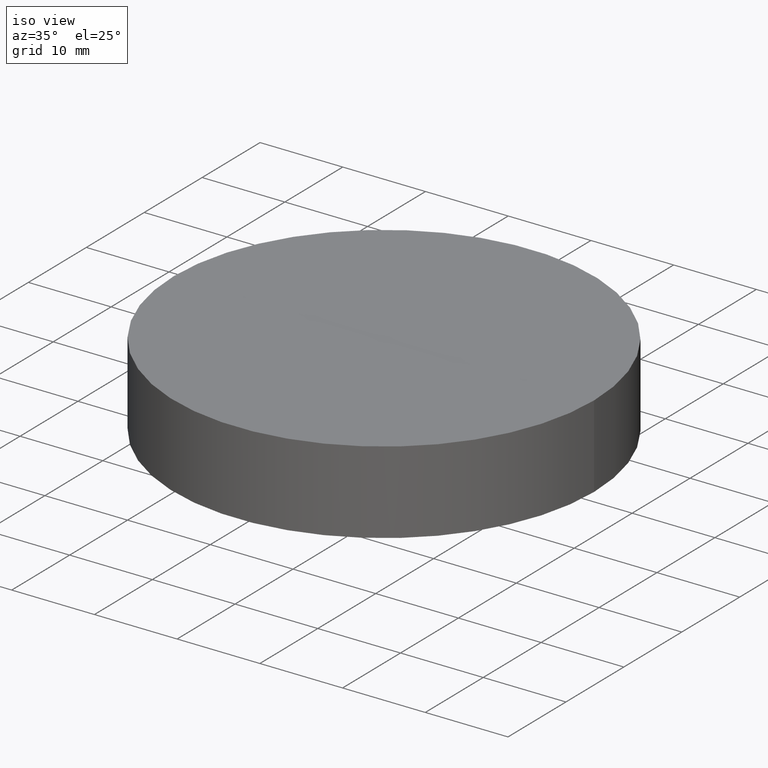
[diagram: clean part render]
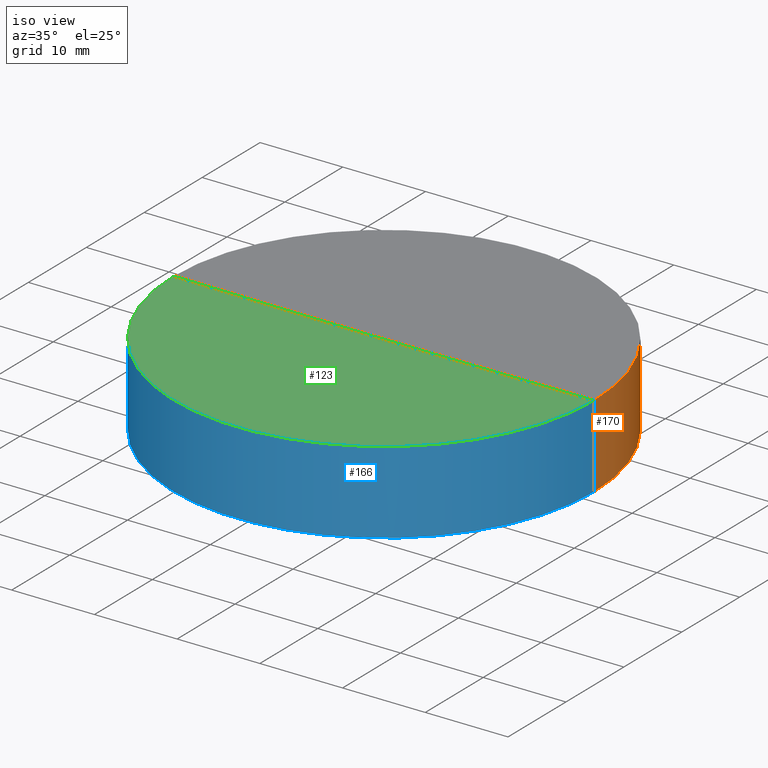
[diagram: same view with three faces highlighted in distinct colors, each labeled with its STEP entity id]
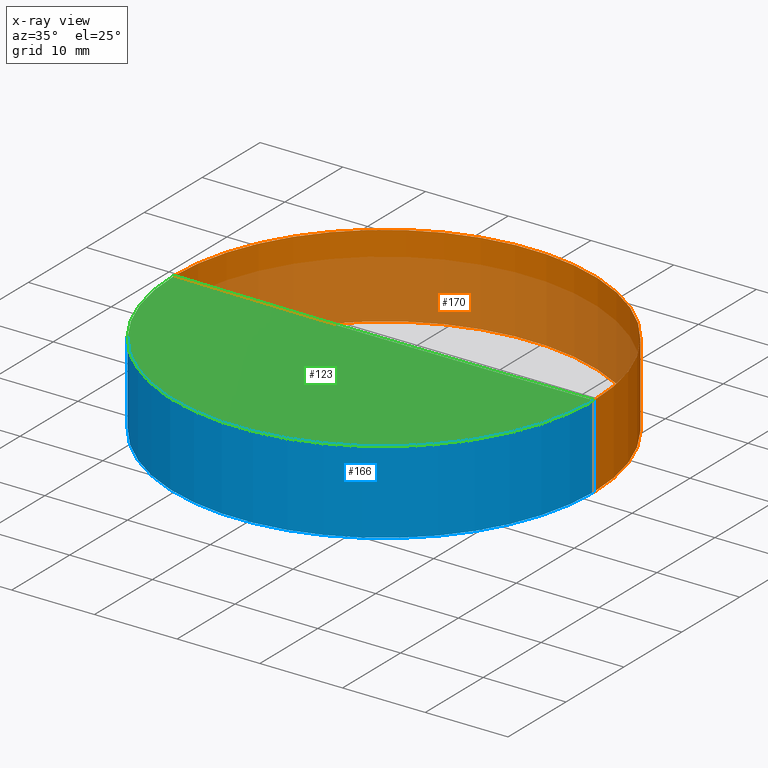
[diagram: x-ray of the same camera — body ghosted, the three highlighted faces saturated]
A machine part, iso view with three faces highlighted in distinct colors.
The next image is the same camera in x-ray (body ghosted, the three faces saturated) — at least one of them is partly hidden behind the body in this view.
Their STEP definitions:

[orange] entity #170 — the highlighted cylindrical surface (partial cylindrical patch) has radius 25.4 mm, axis along (-0, -0, -1).
#2 = DIRECTION ( 'NONE',  ( 0.000000000000000000, 0.000000000000000000, 1.000000000000000000 ) ) ;
#15 = ORIENTED_EDGE ( 'NONE', *, *, #83, .T. ) ;
#16 = CARTESIAN_POINT ( 'NONE',  ( -25.39999999999999858, 0.000000000000000000, 0.000000000000000000 ) ) ;
#18 = CARTESIAN_POINT ( 'NONE',  ( -25.39999999995439239, 0.000000000000000000, 9.999999999999786837 ) ) ;
#20 = DIRECTION ( 'NONE',  ( -1.000000000000000000, 0.000000000000000000, 0.000000000000000000 ) ) ;
#33 = LINE ( 'NONE', #191, #163 ) ;
#34 = FACE_OUTER_BOUND ( 'NONE', #184, .T. ) ;
#38 = VECTOR ( 'NONE', #81, 1000.000000000000000 ) ;
#43 = VERTEX_POINT ( 'NONE', #89 ) ;
#52 = CARTESIAN_POINT ( 'NONE',  ( 0.000000000000000000, 0.000000000000000000, 0.000000000000000000 ) ) ;
#64 = CYLINDRICAL_SURFACE ( 'NONE', #66, 25.39999999999999858 ) ;
#66 = AXIS2_PLACEMENT_3D ( 'NONE', #159, #190, #20 ) ;
#67 = DIRECTION ( 'NONE',  ( 1.000000000000000000, 0.000000000000000000, 0.000000000000000000 ) ) ;
#75 = EDGE_CURVE ( 'NONE', #110, #43, #85, .T. ) ;
#77 = VERTEX_POINT ( 'NONE', #156 ) ;
#80 = LINE ( 'NONE', #100, #38 ) ;
#81 = DIRECTION ( 'NONE',  ( -0.000000000000000000, -0.000000000000000000, -1.000000000000000000 ) ) ;
#83 = EDGE_CURVE ( 'NONE', #43, #77, #80, .T. ) ;
#85 = CIRCLE ( 'NONE', #108, 25.39999999995476543 ) ;
#89 = CARTESIAN_POINT ( 'NONE',  ( 25.39999999995513491, 3.110602869831530446E-15, 9.999999999999786837 ) ) ;
#93 = ORIENTED_EDGE ( 'NONE', *, *, #75, .T. ) ;
#94 = AXIS2_PLACEMENT_3D ( 'NONE', #52, #2, #67 ) ;
#96 = DIRECTION ( 'NONE',  ( -0.000000000000000000, -0.000000000000000000, -1.000000000000000000 ) ) ;
#97 = DIRECTION ( 'NONE',  ( -0.000000000000000000, -0.000000000000000000, -1.000000000000000000 ) ) ;
#100 = CARTESIAN_POINT ( 'NONE',  ( 25.39999999999999858, 3.110602869834276865E-15, 10.00000000000000000 ) ) ;
#108 = AXIS2_PLACEMENT_3D ( 'NONE', #143, #97, #169 ) ;
#110 = VERTEX_POINT ( 'NONE', #18 ) ;
#111 = ORIENTED_EDGE ( 'NONE', *, *, #115, .F. ) ;
#115 = EDGE_CURVE ( 'NONE', #110, #198, #33, .T. ) ;
#143 = CARTESIAN_POINT ( 'NONE',  ( 3.712308238590367182E-13, 0.000000000000000000, 9.999999999999786837 ) ) ;
#147 = EDGE_CURVE ( 'NONE', #77, #198, #176, .T. ) ;
#152 = ORIENTED_EDGE ( 'NONE', *, *, #147, .T. ) ;
#156 = CARTESIAN_POINT ( 'NONE',  ( 25.39999999999999858, 3.110602869834276865E-15, 0.000000000000000000 ) ) ;
#159 = CARTESIAN_POINT ( 'NONE',  ( 0.000000000000000000, 0.000000000000000000, 10.00000000000000000 ) ) ;
#163 = VECTOR ( 'NONE', #96, 1000.000000000000000 ) ;
#169 = DIRECTION ( 'NONE',  ( 1.000000000000000000, 0.000000000000000000, 0.000000000000000000 ) ) ;
#170 = ADVANCED_FACE ( 'NONE', ( #34 ), #64, .T. ) ;
#176 = CIRCLE ( 'NONE', #94, 25.39999999999999858 ) ;
#184 = EDGE_LOOP ( 'NONE', ( #93, #15, #152, #111 ) ) ;
#190 = DIRECTION ( 'NONE',  ( -0.000000000000000000, -0.000000000000000000, -1.000000000000000000 ) ) ;
#191 = CARTESIAN_POINT ( 'NONE',  ( -25.39999999999999858, 0.000000000000000000, 10.00000000000000000 ) ) ;
#198 = VERTEX_POINT ( 'NONE', #16 ) ;

[blue] entity #166 — the highlighted cylindrical surface (partial cylindrical patch) has radius 25.4 mm, axis along (-0, -0, -1).
#12 = EDGE_CURVE ( 'NONE', #43, #110, #101, .T. ) ;
#16 = CARTESIAN_POINT ( 'NONE',  ( -25.39999999999999858, 0.000000000000000000, 0.000000000000000000 ) ) ;
#17 = AXIS2_PLACEMENT_3D ( 'NONE', #167, #113, #31 ) ;
#18 = CARTESIAN_POINT ( 'NONE',  ( -25.39999999995439239, 0.000000000000000000, 9.999999999999786837 ) ) ;
#26 = DIRECTION ( 'NONE',  ( 1.000000000000000000, 0.000000000000000000, 0.000000000000000000 ) ) ;
#30 = ORIENTED_EDGE ( 'NONE', *, *, #83, .F. ) ;
#31 = DIRECTION ( 'NONE',  ( -1.000000000000000000, 0.000000000000000000, 0.000000000000000000 ) ) ;
#32 = CARTESIAN_POINT ( 'NONE',  ( 0.000000000000000000, 0.000000000000000000, 0.000000000000000000 ) ) ;
#33 = LINE ( 'NONE', #191, #163 ) ;
#38 = VECTOR ( 'NONE', #81, 1000.000000000000000 ) ;
#43 = VERTEX_POINT ( 'NONE', #89 ) ;
#50 = AXIS2_PLACEMENT_3D ( 'NONE', #32, #155, #145 ) ;
#77 = VERTEX_POINT ( 'NONE', #156 ) ;
#78 = CYLINDRICAL_SURFACE ( 'NONE', #17, 25.39999999999999858 ) ;
#80 = LINE ( 'NONE', #100, #38 ) ;
#81 = DIRECTION ( 'NONE',  ( -0.000000000000000000, -0.000000000000000000, -1.000000000000000000 ) ) ;
#83 = EDGE_CURVE ( 'NONE', #43, #77, #80, .T. ) ;
#89 = CARTESIAN_POINT ( 'NONE',  ( 25.39999999995513491, 3.110602869831530446E-15, 9.999999999999786837 ) ) ;
#96 = DIRECTION ( 'NONE',  ( -0.000000000000000000, -0.000000000000000000, -1.000000000000000000 ) ) ;
#100 = CARTESIAN_POINT ( 'NONE',  ( 25.39999999999999858, 3.110602869834276865E-15, 10.00000000000000000 ) ) ;
#101 = CIRCLE ( 'NONE', #168, 25.39999999995476543 ) ;
#106 = CARTESIAN_POINT ( 'NONE',  ( 3.712308238590367182E-13, 0.000000000000000000, 9.999999999999786837 ) ) ;
#110 = VERTEX_POINT ( 'NONE', #18 ) ;
#113 = DIRECTION ( 'NONE',  ( -0.000000000000000000, -0.000000000000000000, -1.000000000000000000 ) ) ;
#115 = EDGE_CURVE ( 'NONE', #110, #198, #33, .T. ) ;
#125 = ORIENTED_EDGE ( 'NONE', *, *, #181, .T. ) ;
#145 = DIRECTION ( 'NONE',  ( 1.000000000000000000, 0.000000000000000000, 0.000000000000000000 ) ) ;
#154 = ORIENTED_EDGE ( 'NONE', *, *, #12, .T. ) ;
#155 = DIRECTION ( 'NONE',  ( 0.000000000000000000, 0.000000000000000000, 1.000000000000000000 ) ) ;
#156 = CARTESIAN_POINT ( 'NONE',  ( 25.39999999999999858, 3.110602869834276865E-15, 0.000000000000000000 ) ) ;
#158 = FACE_OUTER_BOUND ( 'NONE', #165, .T. ) ;
#162 = DIRECTION ( 'NONE',  ( -0.000000000000000000, -0.000000000000000000, -1.000000000000000000 ) ) ;
#163 = VECTOR ( 'NONE', #96, 1000.000000000000000 ) ;
#165 = EDGE_LOOP ( 'NONE', ( #30, #154, #197, #125 ) ) ;
#166 = ADVANCED_FACE ( 'NONE', ( #158 ), #78, .T. ) ;
#167 = CARTESIAN_POINT ( 'NONE',  ( 0.000000000000000000, 0.000000000000000000, 10.00000000000000000 ) ) ;
#168 = AXIS2_PLACEMENT_3D ( 'NONE', #106, #162, #26 ) ;
#181 = EDGE_CURVE ( 'NONE', #198, #77, #192, .T. ) ;
#191 = CARTESIAN_POINT ( 'NONE',  ( -25.39999999999999858, 0.000000000000000000, 10.00000000000000000 ) ) ;
#192 = CIRCLE ( 'NONE', #50, 25.39999999999999858 ) ;
#197 = ORIENTED_EDGE ( 'NONE', *, *, #115, .T. ) ;
#198 = VERTEX_POINT ( 'NONE', #16 ) ;

[green] entity #123 — the highlighted spherical surface has radius 3000 mm.
#5 = SPHERICAL_SURFACE ( 'NONE', #22, 2999.999999999999545 ) ;
#7 = FACE_OUTER_BOUND ( 'NONE', #29, .T. ) ;
#9 = CIRCLE ( 'NONE', #151, 2999.999999999999091 ) ;
#12 = EDGE_CURVE ( 'NONE', #43, #110, #101, .T. ) ;
#18 = CARTESIAN_POINT ( 'NONE',  ( -25.39999999995439239, 0.000000000000000000, 9.999999999999786837 ) ) ;
#19 = DIRECTION ( 'NONE',  ( 0.000000000000000000, 1.000000000000000000, -0.000000000000000000 ) ) ;
#22 = AXIS2_PLACEMENT_3D ( 'NONE', #157, #171, #112 ) ;
#26 = DIRECTION ( 'NONE',  ( 1.000000000000000000, 0.000000000000000000, 0.000000000000000000 ) ) ;
#29 = EDGE_LOOP ( 'NONE', ( #179, #61, #58 ) ) ;
#43 = VERTEX_POINT ( 'NONE', #89 ) ;
#48 = DIRECTION ( 'NONE',  ( 0.000000000000000000, 0.000000000000000000, 1.000000000000000000 ) ) ;
#58 = ORIENTED_EDGE ( 'NONE', *, *, #140, .T. ) ;
#61 = ORIENTED_EDGE ( 'NONE', *, *, #12, .F. ) ;
#63 = CARTESIAN_POINT ( 'NONE',  ( 3.712308238590367182E-13, 0.000000000000000000, 3009.892471406266850 ) ) ;
#82 = CARTESIAN_POINT ( 'NONE',  ( 5.549278437311396424E-13, 0.000000000000000000, 9.892471406267144829 ) ) ;
#89 = CARTESIAN_POINT ( 'NONE',  ( 25.39999999995513491, 3.110602869831530446E-15, 9.999999999999786837 ) ) ;
#95 = CARTESIAN_POINT ( 'NONE',  ( 3.712308238590367182E-13, 0.000000000000000000, 3009.892471406266850 ) ) ;
#101 = CIRCLE ( 'NONE', #168, 25.39999999995476543 ) ;
#106 = CARTESIAN_POINT ( 'NONE',  ( 3.712308238590367182E-13, 0.000000000000000000, 9.999999999999786837 ) ) ;
#110 = VERTEX_POINT ( 'NONE', #18 ) ;
#112 = DIRECTION ( 'NONE',  ( 1.000000000000000000, 0.000000000000000000, 0.000000000000000000 ) ) ;
#114 = DIRECTION ( 'NONE',  ( 1.000000000000000000, 1.224646799147353207E-16, 0.000000000000000000 ) ) ;
#117 = CIRCLE ( 'NONE', #138, 2999.999999999999545 ) ;
#123 = ADVANCED_FACE ( 'NONE', ( #7 ), #5, .F. ) ;
#138 = AXIS2_PLACEMENT_3D ( 'NONE', #63, #187, #114 ) ;
#140 = EDGE_CURVE ( 'NONE', #43, #182, #9, .T. ) ;
#144 = EDGE_CURVE ( 'NONE', #110, #182, #117, .T. ) ;
#151 = AXIS2_PLACEMENT_3D ( 'NONE', #95, #19, #48 ) ;
#157 = CARTESIAN_POINT ( 'NONE',  ( 3.712308238590367182E-13, 0.000000000000000000, 3009.892471406266850 ) ) ;
#162 = DIRECTION ( 'NONE',  ( -0.000000000000000000, -0.000000000000000000, -1.000000000000000000 ) ) ;
#168 = AXIS2_PLACEMENT_3D ( 'NONE', #106, #162, #26 ) ;
#171 = DIRECTION ( 'NONE',  ( 0.000000000000000000, -1.000000000000000000, -0.000000000000000000 ) ) ;
#179 = ORIENTED_EDGE ( 'NONE', *, *, #144, .F. ) ;
#182 = VERTEX_POINT ( 'NONE', #82 ) ;
#187 = DIRECTION ( 'NONE',  ( 1.224646799147353207E-16, -1.000000000000000000, 0.000000000000000000 ) ) ;